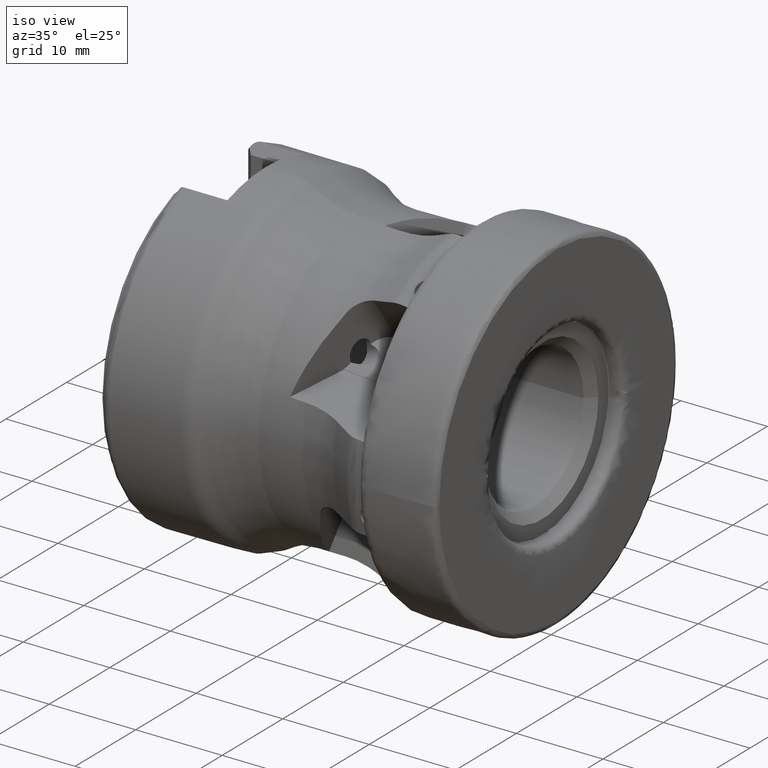
[diagram: clean part render]
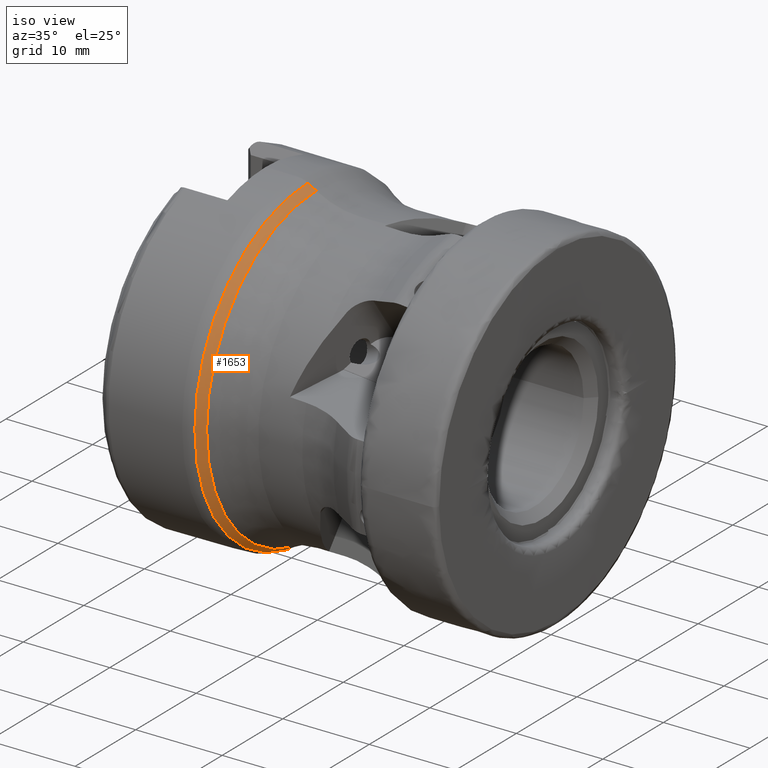
[diagram: same view with one face highlighted and labeled with its STEP entity id]
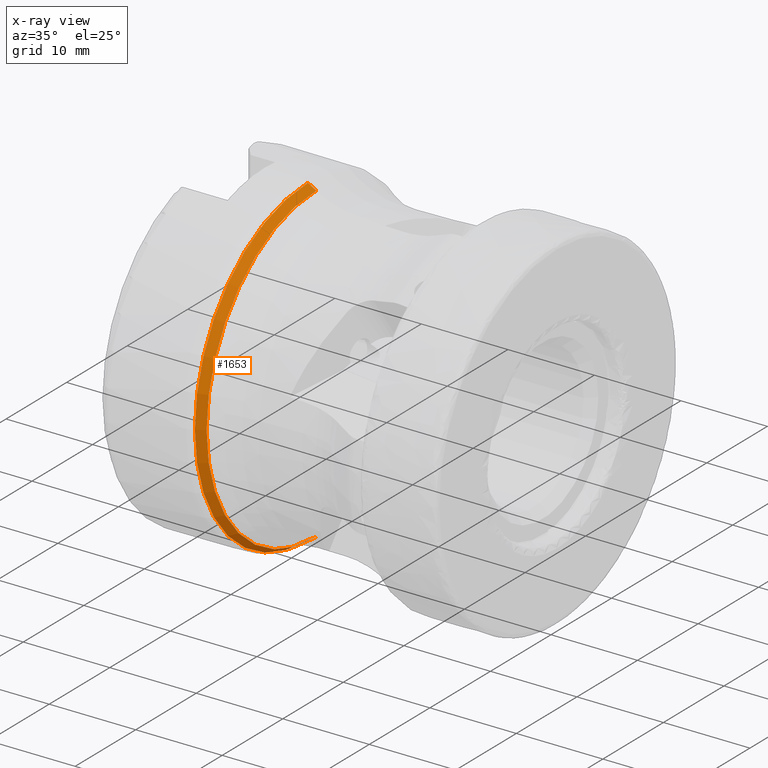
[diagram: x-ray of the same camera — body ghosted, the highlighted face saturated]
A machine part, iso view. The second image highlights one B-rep face of the part: STEP entity #1653.
The next image is the same camera in x-ray: the body ghosted, the highlighted face saturated — about 0% of this face is hidden behind the body in this view.
In plain terms, the highlighted conical surface has half-angle 30.158 deg.
Its self-contained STEP definition (entity closure, byte-faithful):
#63 = ORIENTED_EDGE ( 'NONE', *, *, #737, .T. ) ;
#737 = EDGE_CURVE ( 'NONE', #4274, #1331, #6002, .T. ) ;
#760 = DIRECTION ( 'NONE',  ( -0.8646475152238489700, 6.152368523188117800E-017, -0.5023790147062513500 ) ) ;
#872 = DIRECTION ( 'NONE',  ( 1.000000000000000000, -0.0000000000000000000, -0.0000000000000000000 ) ) ;
#875 = DIRECTION ( 'NONE',  ( -0.8646475152238489700, 0.0000000000000000000, 0.5023790147062513500 ) ) ;
#1279 = LINE ( 'NONE', #5475, #4670 ) ;
#1331 = VERTEX_POINT ( 'NONE', #8341 ) ;
#1432 = VECTOR ( 'NONE', #875, 1000.000000000000000 ) ;
#1653 = ADVANCED_FACE ( 'NONE', ( #3029 ), #2819, .T. ) ;
#1816 = DIRECTION ( 'NONE',  ( 0.0000000000000000000, 0.0000000000000000000, 1.000000000000000000 ) ) ;
#2003 = ORIENTED_EDGE ( 'NONE', *, *, #5051, .F. ) ;
#2004 = EDGE_CURVE ( 'NONE', #1331, #4469, #7389, .T. ) ;
#2012 = VERTEX_POINT ( 'NONE', #2852 ) ;
#2027 = AXIS2_PLACEMENT_3D ( 'NONE', #2882, #7644, #3574 ) ;
#2280 = AXIS2_PLACEMENT_3D ( 'NONE', #4934, #872, #5623 ) ;
#2526 = CIRCLE ( 'NONE', #2027, 18.10352484776151600 ) ;
#2819 = CONICAL_SURFACE ( 'NONE', #4746, 18.10352484776151600, 0.5263480105134364900 ) ;
#2852 = CARTESIAN_POINT ( 'NONE',  ( -27.13351365764274400, 2.251215773690051800E-015, -18.10352484776151600 ) ) ;
#2882 = CARTESIAN_POINT ( 'NONE',  ( -27.13351365764274400, 0.0000000000000000000, 0.0000000000000000000 ) ) ;
#3029 = FACE_OUTER_BOUND ( 'NONE', #5251, .T. ) ;
#3163 = CARTESIAN_POINT ( 'NONE',  ( -27.13351365764274400, 0.0000000000000000000, 0.0000000000000000000 ) ) ;
#3544 = ORIENTED_EDGE ( 'NONE', *, *, #2004, .T. ) ;
#3574 = DIRECTION ( 'NONE',  ( 0.0000000000000000000, 0.0000000000000000000, -1.000000000000000000 ) ) ;
#3820 = EDGE_CURVE ( 'NONE', #2012, #4469, #1279, .T. ) ;
#4274 = VERTEX_POINT ( 'NONE', #4682 ) ;
#4469 = VERTEX_POINT ( 'NONE', #8321 ) ;
#4670 = VECTOR ( 'NONE', #760, 1000.000000000000000 ) ;
#4682 = CARTESIAN_POINT ( 'NONE',  ( -27.13351365764274400, 0.0000000000000000000, 18.10352484776151600 ) ) ;
#4746 = AXIS2_PLACEMENT_3D ( 'NONE', #3163, #5198, #1816 ) ;
#4934 = CARTESIAN_POINT ( 'NONE',  ( -28.09405246323436600, 0.0000000000000000000, 0.0000000000000000000 ) ) ;
#5051 = EDGE_CURVE ( 'NONE', #4274, #2012, #2526, .T. ) ;
#5198 = DIRECTION ( 'NONE',  ( -1.000000000000000000, 0.0000000000000000000, 0.0000000000000000000 ) ) ;
#5251 = EDGE_LOOP ( 'NONE', ( #7320, #2003, #63, #3544 ) ) ;
#5475 = CARTESIAN_POINT ( 'NONE',  ( -27.13351365764274400, 2.217042375809571900E-015, -18.10352484776151600 ) ) ;
#5623 = DIRECTION ( 'NONE',  ( 0.0000000000000000000, 0.0000000000000000000, -1.000000000000000000 ) ) ;
#6002 = LINE ( 'NONE', #7797, #1432 ) ;
#7320 = ORIENTED_EDGE ( 'NONE', *, *, #3820, .F. ) ;
#7389 = CIRCLE ( 'NONE', #2280, 18.66161878805961600 ) ;
#7644 = DIRECTION ( 'NONE',  ( 1.000000000000000000, -0.0000000000000000000, -0.0000000000000000000 ) ) ;
#7797 = CARTESIAN_POINT ( 'NONE',  ( -27.13351365764274400, 0.0000000000000000000, 18.10352484776151600 ) ) ;
#8321 = CARTESIAN_POINT ( 'NONE',  ( -28.09405246323436600, 0.0000000000000000000, -18.66161878805961600 ) ) ;
#8341 = CARTESIAN_POINT ( 'NONE',  ( -28.09405246323436600, 2.306109044975251200E-015, 18.66161878805961600 ) ) ;